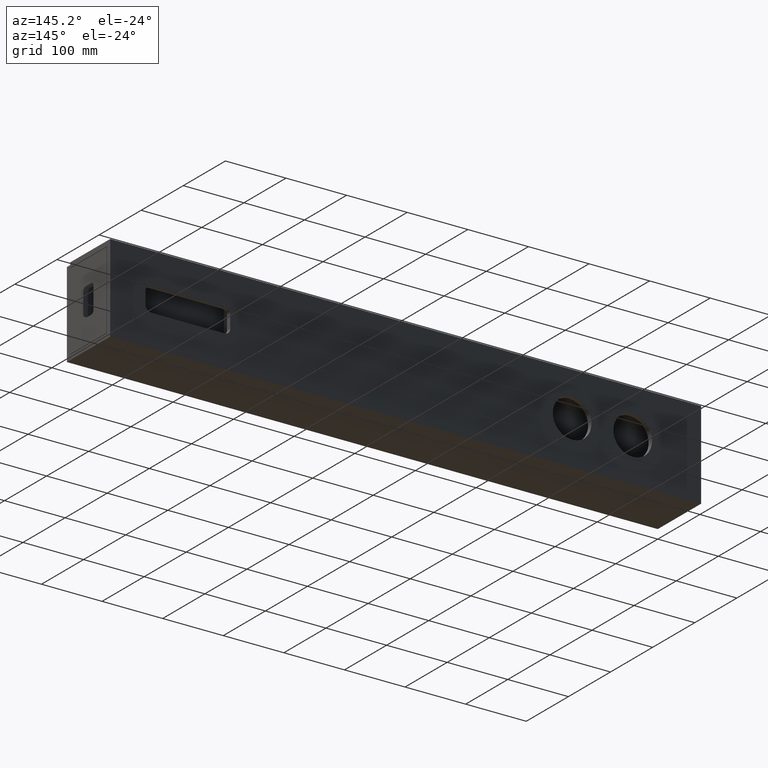
[diagram: clean part render]
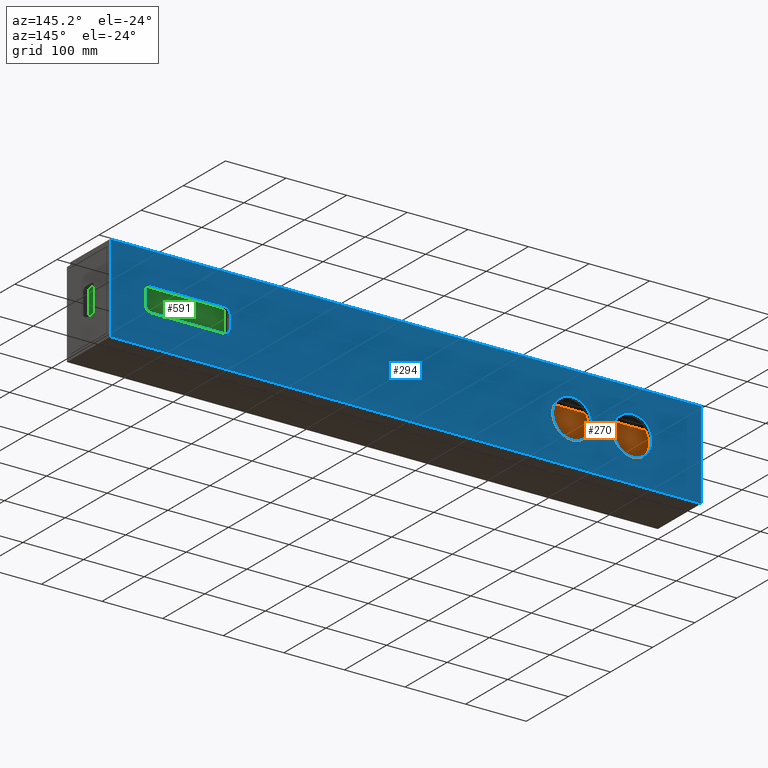
[diagram: same view with three faces highlighted in distinct colors, each labeled with its STEP entity id]
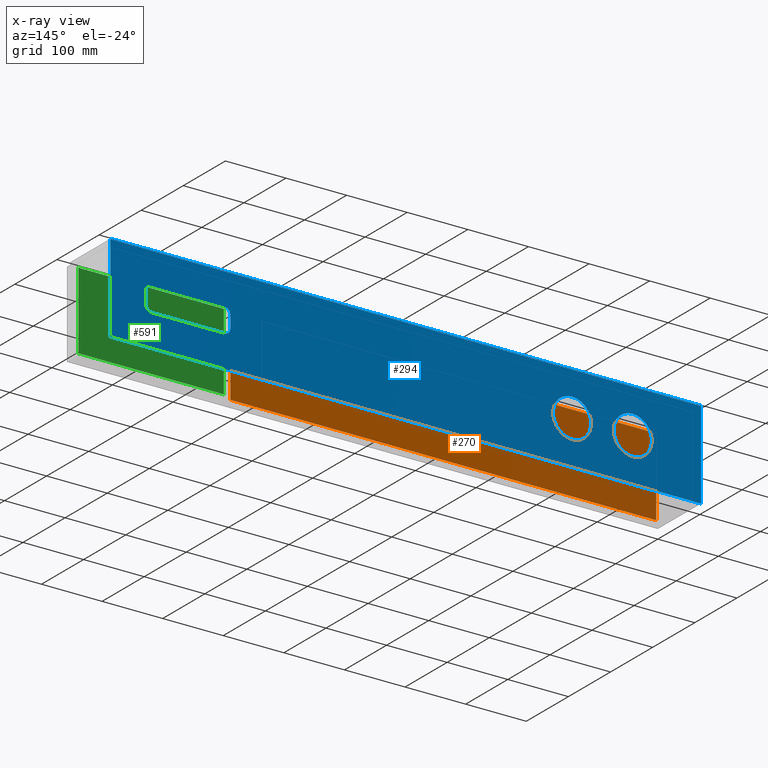
[diagram: x-ray of the same camera — body ghosted, the three highlighted faces saturated]
A machine part, auxiliary view with three faces highlighted in distinct colors.
The next image is the same camera in x-ray (body ghosted, the three faces saturated) — at least one of them is partly hidden behind the body in this view.
Their STEP definitions:

[orange] entity #270 — the highlighted planar face has unit normal (0, 1, 0).
#100 = CARTESIAN_POINT ( 'NONE',  ( 8.000000000000007105, 8.000000000000000000, 8.000000000000000000 ) ) ;
#105 = VECTOR ( 'NONE', #938, 1000.000000000000000 ) ;
#122 = AXIS2_PLACEMENT_3D ( 'NONE', #1422, #1418, #1432 ) ;
#181 = DIRECTION ( 'NONE',  ( -1.000000000000000000, -0.0000000000000000000, -0.0000000000000000000 ) ) ;
#183 = CARTESIAN_POINT ( 'NONE',  ( 975.0000000000000000, 8.000000000000000000, 136.9999999999999432 ) ) ;
#185 = LINE ( 'NONE', #183, #743 ) ;
#270 = ADVANCED_FACE ( 'NONE', ( #1428 ), #1426, .T. ) ;
#296 = EDGE_CURVE ( 'NONE', #928, #590, #1374, .T. ) ;
#338 = VECTOR ( 'NONE', #1562, 1000.000000000000000 ) ;
#499 = EDGE_CURVE ( 'NONE', #772, #1179, #185, .T. ) ;
#590 = VERTEX_POINT ( 'NONE', #100 ) ;
#743 = VECTOR ( 'NONE', #181, 1000.000000000000000 ) ;
#772 = VERTEX_POINT ( 'NONE', #1397 ) ;
#867 = EDGE_CURVE ( 'NONE', #1179, #590, #1310, .T. ) ;
#928 = VERTEX_POINT ( 'NONE', #1259 ) ;
#932 = ORIENTED_EDGE ( 'NONE', *, *, #296, .T. ) ;
#938 = DIRECTION ( 'NONE',  ( 0.0000000000000000000, -0.0000000000000000000, 1.000000000000000000 ) ) ;
#939 = CARTESIAN_POINT ( 'NONE',  ( 710.9999999999998863, 8.000000000000000000, 8.000000000000000000 ) ) ;
#943 = LINE ( 'NONE', #939, #105 ) ;
#973 = ORIENTED_EDGE ( 'NONE', *, *, #867, .F. ) ;
#1005 = ORIENTED_EDGE ( 'NONE', *, *, #499, .F. ) ;
#1023 = CARTESIAN_POINT ( 'NONE',  ( 8.000000000000007105, 8.000000000000000000, 136.9999999999999432 ) ) ;
#1050 = ORIENTED_EDGE ( 'NONE', *, *, #1294, .F. ) ;
#1163 = EDGE_LOOP ( 'NONE', ( #1050, #932, #973, #1005 ) ) ;
#1179 = VERTEX_POINT ( 'NONE', #1023 ) ;
#1190 = VECTOR ( 'NONE', #1304, 1000.000000000000000 ) ;
#1259 = CARTESIAN_POINT ( 'NONE',  ( 710.9999999999998863, 8.000000000000000000, 8.000000000000000000 ) ) ;
#1294 = EDGE_CURVE ( 'NONE', #928, #772, #943, .T. ) ;
#1304 = DIRECTION ( 'NONE',  ( -0.0000000000000000000, 0.0000000000000000000, -1.000000000000000000 ) ) ;
#1307 = CARTESIAN_POINT ( 'NONE',  ( 8.000000000000007105, 8.000000000000000000, 8.000000000000000000 ) ) ;
#1310 = LINE ( 'NONE', #1307, #1190 ) ;
#1374 = LINE ( 'NONE', #1466, #338 ) ;
#1397 = CARTESIAN_POINT ( 'NONE',  ( 710.9999999999998863, 7.999999999999906741, 136.9999999999999432 ) ) ;
#1418 = DIRECTION ( 'NONE',  ( 0.0000000000000000000, 1.000000000000000000, 0.0000000000000000000 ) ) ;
#1422 = CARTESIAN_POINT ( 'NONE',  ( 975.0000000000000000, 8.000000000000000000, 8.000000000000000000 ) ) ;
#1426 = PLANE ( 'NONE',  #122 ) ;
#1428 = FACE_OUTER_BOUND ( 'NONE', #1163, .T. ) ;
#1432 = DIRECTION ( 'NONE',  ( 0.0000000000000000000, -0.0000000000000000000, 1.000000000000000000 ) ) ;
#1466 = CARTESIAN_POINT ( 'NONE',  ( 975.0000000000000000, 8.000000000000000000, 8.000000000000000000 ) ) ;
#1562 = DIRECTION ( 'NONE',  ( -1.000000000000000000, -0.0000000000000000000, -0.0000000000000000000 ) ) ;

[blue] entity #294 — the highlighted planar face has unit normal (0, -1, -0).
#10 = CIRCLE ( 'NONE', #559, 10.00000000000000888 ) ;
#36 = AXIS2_PLACEMENT_3D ( 'NONE', #1527, #1519, #451 ) ;
#41 = DIRECTION ( 'NONE',  ( 1.000000000000000000, 0.0000000000000000000, 0.0000000000000000000 ) ) ;
#42 = CARTESIAN_POINT ( 'NONE',  ( 786.9999999999998863, 102.9999999999999858, 92.50000000000000000 ) ) ;
#43 = LINE ( 'NONE', #42, #234 ) ;
#102 = VECTOR ( 'NONE', #841, 1000.000000000000000 ) ;
#106 = CARTESIAN_POINT ( 'NONE',  ( 0.0000000000000000000, 102.9999999999999858, 144.9999999999999716 ) ) ;
#110 = CARTESIAN_POINT ( 'NONE',  ( 975.0000000000000000, 102.9999999999999858, 144.9999999999999716 ) ) ;
#111 = CARTESIAN_POINT ( 'NONE',  ( 906.9999999999998863, 103.0000000000000000, 52.49999999999998579 ) ) ;
#159 = VECTOR ( 'NONE', #810, 1000.000000000000000 ) ;
#164 = VECTOR ( 'NONE', #1392, 1000.000000000000000 ) ;
#206 = DIRECTION ( 'NONE',  ( 0.0000000000000000000, 0.0000000000000000000, 1.000000000000000000 ) ) ;
#207 = DIRECTION ( 'NONE',  ( 0.0000000000000000000, 1.000000000000000000, 9.570888143320319339E-17 ) ) ;
#208 = CARTESIAN_POINT ( 'NONE',  ( 906.9999999999998863, 102.9999999999999858, 82.50000000000000000 ) ) ;
#234 = VECTOR ( 'NONE', #41, 1000.000000000000000 ) ;
#256 = AXIS2_PLACEMENT_3D ( 'NONE', #859, #858, #856 ) ;
#276 = EDGE_CURVE ( 'NONE', #955, #567, #1449, .T. ) ;
#294 = ADVANCED_FACE ( 'NONE', ( #961, #1020, #1155, #1106 ), #459, .F. ) ;
#331 = VECTOR ( 'NONE', #817, 1000.000000000000000 ) ;
#347 = EDGE_CURVE ( 'NONE', #1308, #964, #546, .T. ) ;
#349 = DIRECTION ( 'NONE',  ( 0.0000000000000000000, 0.0000000000000000000, 1.000000000000000000 ) ) ;
#351 = DIRECTION ( 'NONE',  ( 0.0000000000000000000, 1.000000000000000000, 9.570888143320319339E-17 ) ) ;
#353 = CARTESIAN_POINT ( 'NONE',  ( 786.9999999999998863, 103.0000000000000000, 62.49999999999997868 ) ) ;
#362 = EDGE_CURVE ( 'NONE', #1297, #1053, #422, .T. ) ;
#385 = EDGE_CURVE ( 'NONE', #1065, #1297, #462, .T. ) ;
#393 = CIRCLE ( 'NONE', #651, 32.00000000000000000 ) ;
#413 = CIRCLE ( 'NONE', #1284, 9.999999999999994671 ) ;
#420 = DIRECTION ( 'NONE',  ( 0.0000000000000000000, -6.938893903907219503E-16, 1.000000000000000000 ) ) ;
#421 = CARTESIAN_POINT ( 'NONE',  ( 776.9999999999998863, 103.0000000000000000, 62.49999999999997868 ) ) ;
#422 = LINE ( 'NONE', #421, #617 ) ;
#450 = DIRECTION ( 'NONE',  ( 0.0000000000000000000, -1.000000000000000000, -9.570888143320319339E-17 ) ) ;
#451 = DIRECTION ( 'NONE',  ( 0.0000000000000000000, 0.0000000000000000000, 1.000000000000000000 ) ) ;
#459 = PLANE ( 'NONE',  #1191 ) ;
#462 = CIRCLE ( 'NONE', #1104, 10.00000000000000178 ) ;
#475 = ORIENTED_EDGE ( 'NONE', *, *, #1570, .F. ) ;
#480 = EDGE_CURVE ( 'NONE', #884, #785, #1447, .T. ) ;
#481 = CARTESIAN_POINT ( 'NONE',  ( 975.0000000000000000, 103.0000000000000000, 0.0000000000000000000 ) ) ;
#512 = AXIS2_PLACEMENT_3D ( 'NONE', #208, #207, #206 ) ;
#530 = CIRCLE ( 'NONE', #1185, 32.00000000000000000 ) ;
#546 = CIRCLE ( 'NONE', #36, 32.00000000000000000 ) ;
#552 = VERTEX_POINT ( 'NONE', #111 ) ;
#559 = AXIS2_PLACEMENT_3D ( 'NONE', #799, #794, #791 ) ;
#560 = ORIENTED_EDGE ( 'NONE', *, *, #276, .F. ) ;
#566 = VERTEX_POINT ( 'NONE', #1171 ) ;
#567 = VERTEX_POINT ( 'NONE', #110 ) ;
#578 = VERTEX_POINT ( 'NONE', #106 ) ;
#596 = DIRECTION ( 'NONE',  ( 0.0000000000000000000, 9.570888143320319339E-17, -1.000000000000000000 ) ) ;
#617 = VECTOR ( 'NONE', #420, 1000.000000000000000 ) ;
#618 = EDGE_CURVE ( 'NONE', #1288, #884, #43, .T. ) ;
#627 = ORIENTED_EDGE ( 'NONE', *, *, #1537, .F. ) ;
#651 = AXIS2_PLACEMENT_3D ( 'NONE', #1368, #1365, #1363 ) ;
#676 = EDGE_CURVE ( 'NONE', #552, #1065, #1549, .T. ) ;
#685 = ORIENTED_EDGE ( 'NONE', *, *, #618, .F. ) ;
#742 = EDGE_CURVE ( 'NONE', #1053, #1288, #413, .T. ) ;
#785 = VERTEX_POINT ( 'NONE', #1394 ) ;
#791 = DIRECTION ( 'NONE',  ( 0.0000000000000000000, 0.0000000000000000000, -1.000000000000000000 ) ) ;
#794 = DIRECTION ( 'NONE',  ( 0.0000000000000000000, 1.000000000000000000, 9.570888143320319339E-17 ) ) ;
#799 = CARTESIAN_POINT ( 'NONE',  ( 906.9999999999998863, 103.0000000000000000, 62.49999999999998579 ) ) ;
#804 = EDGE_CURVE ( 'NONE', #964, #1308, #393, .T. ) ;
#810 = DIRECTION ( 'NONE',  ( -1.000000000000000000, -0.0000000000000000000, -0.0000000000000000000 ) ) ;
#814 = CARTESIAN_POINT ( 'NONE',  ( 975.0000000000000000, 102.9999999999999858, 144.9999999999999716 ) ) ;
#816 = LINE ( 'NONE', #814, #159 ) ;
#817 = DIRECTION ( 'NONE',  ( -1.000000000000000000, -0.0000000000000000000, -0.0000000000000000000 ) ) ;
#820 = CARTESIAN_POINT ( 'NONE',  ( 975.0000000000000000, 103.0000000000000000, 0.0000000000000000000 ) ) ;
#824 = LINE ( 'NONE', #820, #331 ) ;
#826 = DIRECTION ( 'NONE',  ( 0.0000000000000000000, 0.0000000000000000000, 1.000000000000000000 ) ) ;
#832 = DIRECTION ( 'NONE',  ( 0.0000000000000000000, 1.000000000000000000, 9.570888143320319339E-17 ) ) ;
#835 = CARTESIAN_POINT ( 'NONE',  ( 213.0000000000000284, 102.9999999999999858, 72.49999999999998579 ) ) ;
#841 = DIRECTION ( 'NONE',  ( -0.0000000000000000000, 6.938893903907219503E-16, -1.000000000000000000 ) ) ;
#844 = CARTESIAN_POINT ( 'NONE',  ( 916.9999999999998863, 103.0000000000000000, 62.49999999999997868 ) ) ;
#845 = LINE ( 'NONE', #844, #102 ) ;
#856 = DIRECTION ( 'NONE',  ( 0.0000000000000000000, 0.0000000000000000000, 1.000000000000000000 ) ) ;
#858 = DIRECTION ( 'NONE',  ( 0.0000000000000000000, 1.000000000000000000, 9.570888143320319339E-17 ) ) ;
#859 = CARTESIAN_POINT ( 'NONE',  ( 213.0000000000000284, 102.9999999999999858, 72.49999999999998579 ) ) ;
#860 = VECTOR ( 'NONE', #1547, 1000.000000000000000 ) ;
#868 = VERTEX_POINT ( 'NONE', #1303 ) ;
#884 = VERTEX_POINT ( 'NONE', #1286 ) ;
#889 = EDGE_LOOP ( 'NONE', ( #1550, #475, #979, #1082, #685, #1195, #1139, #909 ) ) ;
#909 = ORIENTED_EDGE ( 'NONE', *, *, #385, .F. ) ;
#924 = CARTESIAN_POINT ( 'NONE',  ( 113.0000000000000142, 102.9999999999999858, 104.4999999999999858 ) ) ;
#925 = CARTESIAN_POINT ( 'NONE',  ( 776.9999999999998863, 103.0000000000000000, 62.49999999999997868 ) ) ;
#947 = CARTESIAN_POINT ( 'NONE',  ( 786.9999999999998863, 102.9999999999999858, 92.50000000000000000 ) ) ;
#955 = VERTEX_POINT ( 'NONE', #1244 ) ;
#961 = FACE_BOUND ( 'NONE', #1266, .T. ) ;
#964 = VERTEX_POINT ( 'NONE', #1241 ) ;
#970 = DIRECTION ( 'NONE',  ( 0.0000000000000000000, -9.570888143320318106E-17, 1.000000000000000000 ) ) ;
#975 = CARTESIAN_POINT ( 'NONE',  ( 0.0000000000000000000, 103.0000000000000000, 0.0000000000000000000 ) ) ;
#977 = LINE ( 'NONE', #975, #1558 ) ;
#979 = ORIENTED_EDGE ( 'NONE', *, *, #1472, .F. ) ;
#1011 = VERTEX_POINT ( 'NONE', #1225 ) ;
#1020 = FACE_BOUND ( 'NONE', #1208, .T. ) ;
#1035 = VERTEX_POINT ( 'NONE', #1209 ) ;
#1053 = VERTEX_POINT ( 'NONE', #1164 ) ;
#1065 = VERTEX_POINT ( 'NONE', #1111 ) ;
#1082 = ORIENTED_EDGE ( 'NONE', *, *, #480, .F. ) ;
#1094 = EDGE_LOOP ( 'NONE', ( #1187, #1296, #627, #560 ) ) ;
#1099 = CIRCLE ( 'NONE', #256, 32.00000000000000000 ) ;
#1104 = AXIS2_PLACEMENT_3D ( 'NONE', #353, #351, #349 ) ;
#1106 = FACE_OUTER_BOUND ( 'NONE', #1094, .T. ) ;
#1111 = CARTESIAN_POINT ( 'NONE',  ( 786.9999999999998863, 103.0000000000000000, 52.49999999999998579 ) ) ;
#1139 = ORIENTED_EDGE ( 'NONE', *, *, #362, .F. ) ;
#1155 = FACE_BOUND ( 'NONE', #889, .T. ) ;
#1164 = CARTESIAN_POINT ( 'NONE',  ( 776.9999999999998863, 102.9999999999999858, 82.50000000000000000 ) ) ;
#1171 = CARTESIAN_POINT ( 'NONE',  ( 213.0000000000000284, 102.9999999999999858, 40.49999999999998579 ) ) ;
#1185 = AXIS2_PLACEMENT_3D ( 'NONE', #835, #832, #826 ) ;
#1187 = ORIENTED_EDGE ( 'NONE', *, *, #1494, .T. ) ;
#1191 = AXIS2_PLACEMENT_3D ( 'NONE', #481, #450, #596 ) ;
#1195 = ORIENTED_EDGE ( 'NONE', *, *, #742, .F. ) ;
#1208 = EDGE_LOOP ( 'NONE', ( #1425, #1407 ) ) ;
#1209 = CARTESIAN_POINT ( 'NONE',  ( 0.0000000000000000000, 103.0000000000000000, 0.0000000000000000000 ) ) ;
#1225 = CARTESIAN_POINT ( 'NONE',  ( 213.0000000000000284, 102.9999999999999858, 104.4999999999999858 ) ) ;
#1226 = EDGE_CURVE ( 'NONE', #1035, #578, #977, .T. ) ;
#1241 = CARTESIAN_POINT ( 'NONE',  ( 113.0000000000000142, 102.9999999999999858, 40.49999999999998579 ) ) ;
#1244 = CARTESIAN_POINT ( 'NONE',  ( 975.0000000000000000, 103.0000000000000000, 0.0000000000000000000 ) ) ;
#1266 = EDGE_LOOP ( 'NONE', ( #1421, #1431 ) ) ;
#1284 = AXIS2_PLACEMENT_3D ( 'NONE', #1413, #1410, #1409 ) ;
#1286 = CARTESIAN_POINT ( 'NONE',  ( 906.9999999999998863, 102.9999999999999858, 92.50000000000000000 ) ) ;
#1288 = VERTEX_POINT ( 'NONE', #947 ) ;
#1296 = ORIENTED_EDGE ( 'NONE', *, *, #1226, .T. ) ;
#1297 = VERTEX_POINT ( 'NONE', #925 ) ;
#1303 = CARTESIAN_POINT ( 'NONE',  ( 916.9999999999998863, 103.0000000000000000, 62.49999999999997868 ) ) ;
#1308 = VERTEX_POINT ( 'NONE', #924 ) ;
#1363 = DIRECTION ( 'NONE',  ( 0.0000000000000000000, 0.0000000000000000000, 1.000000000000000000 ) ) ;
#1365 = DIRECTION ( 'NONE',  ( 0.0000000000000000000, 1.000000000000000000, 9.570888143320319339E-17 ) ) ;
#1368 = CARTESIAN_POINT ( 'NONE',  ( 113.0000000000000142, 102.9999999999999858, 72.49999999999998579 ) ) ;
#1392 = DIRECTION ( 'NONE',  ( 0.0000000000000000000, -9.570888143320318106E-17, 1.000000000000000000 ) ) ;
#1394 = CARTESIAN_POINT ( 'NONE',  ( 916.9999999999998863, 102.9999999999999858, 82.50000000000000000 ) ) ;
#1407 = ORIENTED_EDGE ( 'NONE', *, *, #1481, .F. ) ;
#1409 = DIRECTION ( 'NONE',  ( 0.0000000000000000000, 0.0000000000000000000, 1.000000000000000000 ) ) ;
#1410 = DIRECTION ( 'NONE',  ( 0.0000000000000000000, 1.000000000000000000, 9.570888143320319339E-17 ) ) ;
#1413 = CARTESIAN_POINT ( 'NONE',  ( 786.9999999999998863, 102.9999999999999858, 82.50000000000000000 ) ) ;
#1421 = ORIENTED_EDGE ( 'NONE', *, *, #347, .F. ) ;
#1425 = ORIENTED_EDGE ( 'NONE', *, *, #1451, .F. ) ;
#1431 = ORIENTED_EDGE ( 'NONE', *, *, #804, .F. ) ;
#1447 = CIRCLE ( 'NONE', #512, 9.999999999999994671 ) ;
#1449 = LINE ( 'NONE', #1452, #164 ) ;
#1451 = EDGE_CURVE ( 'NONE', #1011, #566, #1099, .T. ) ;
#1452 = CARTESIAN_POINT ( 'NONE',  ( 975.0000000000000000, 103.0000000000000000, 0.0000000000000000000 ) ) ;
#1472 = EDGE_CURVE ( 'NONE', #785, #868, #845, .T. ) ;
#1481 = EDGE_CURVE ( 'NONE', #566, #1011, #530, .T. ) ;
#1494 = EDGE_CURVE ( 'NONE', #955, #1035, #824, .T. ) ;
#1519 = DIRECTION ( 'NONE',  ( 0.0000000000000000000, 1.000000000000000000, 9.570888143320319339E-17 ) ) ;
#1527 = CARTESIAN_POINT ( 'NONE',  ( 113.0000000000000142, 102.9999999999999858, 72.49999999999998579 ) ) ;
#1537 = EDGE_CURVE ( 'NONE', #567, #578, #816, .T. ) ;
#1547 = DIRECTION ( 'NONE',  ( -1.000000000000000000, -0.0000000000000000000, -0.0000000000000000000 ) ) ;
#1548 = CARTESIAN_POINT ( 'NONE',  ( 786.9999999999998863, 103.0000000000000000, 52.49999999999998579 ) ) ;
#1549 = LINE ( 'NONE', #1548, #860 ) ;
#1550 = ORIENTED_EDGE ( 'NONE', *, *, #676, .F. ) ;
#1558 = VECTOR ( 'NONE', #970, 1000.000000000000000 ) ;
#1570 = EDGE_CURVE ( 'NONE', #868, #552, #10, .T. ) ;

[green] entity #591 — the highlighted planar face has unit normal (0, -1, 0).
#20 = CARTESIAN_POINT ( 'NONE',  ( 726.9999999999998863, 15.99999999999994849, 9.000000000000001776 ) ) ;
#89 = VERTEX_POINT ( 'NONE', #1359 ) ;
#95 = DIRECTION ( 'NONE',  ( 1.000000000000000000, 1.445602896647338670E-16, 0.0000000000000000000 ) ) ;
#96 = DIRECTION ( 'NONE',  ( 1.445602896647338670E-16, -1.000000000000000000, 0.0000000000000000000 ) ) ;
#97 = CARTESIAN_POINT ( 'NONE',  ( 967.0000000000000000, 15.99999999999998224, 407.0592527576125690 ) ) ;
#98 = PLANE ( 'NONE',  #682 ) ;
#99 = FACE_OUTER_BOUND ( 'NONE', #1130, .T. ) ;
#360 = DIRECTION ( 'NONE',  ( 1.000000000000000000, 1.445602896647338670E-16, 0.0000000000000000000 ) ) ;
#363 = CARTESIAN_POINT ( 'NONE',  ( 967.0000000000000000, 15.99999999999998224, 135.9999999999999432 ) ) ;
#367 = LINE ( 'NONE', #363, #595 ) ;
#380 = EDGE_CURVE ( 'NONE', #89, #1278, #367, .T. ) ;
#591 = ADVANCED_FACE ( 'NONE', ( #99 ), #98, .F. ) ;
#595 = VECTOR ( 'NONE', #360, 1000.000000000000000 ) ;
#639 = VERTEX_POINT ( 'NONE', #20 ) ;
#663 = VECTOR ( 'NONE', #1566, 1000.000000000000000 ) ;
#668 = EDGE_CURVE ( 'NONE', #89, #639, #1569, .T. ) ;
#682 = AXIS2_PLACEMENT_3D ( 'NONE', #97, #96, #95 ) ;
#793 = ORIENTED_EDGE ( 'NONE', *, *, #1295, .T. ) ;
#798 = ORIENTED_EDGE ( 'NONE', *, *, #668, .F. ) ;
#805 = ORIENTED_EDGE ( 'NONE', *, *, #380, .T. ) ;
#821 = VECTOR ( 'NONE', #848, 1000.000000000000000 ) ;
#837 = ORIENTED_EDGE ( 'NONE', *, *, #1461, .T. ) ;
#848 = DIRECTION ( 'NONE',  ( -1.000000000000000000, -1.445602896647338670E-16, 0.0000000000000000000 ) ) ;
#852 = CARTESIAN_POINT ( 'NONE',  ( 967.0000000000000000, 15.99999999999998224, 9.000000000000001776 ) ) ;
#855 = LINE ( 'NONE', #852, #821 ) ;
#929 = DIRECTION ( 'NONE',  ( -0.0000000000000000000, -0.0000000000000000000, -1.000000000000000000 ) ) ;
#934 = CARTESIAN_POINT ( 'NONE',  ( 967.0000000000000000, 15.99999999999998224, 407.0592527576125690 ) ) ;
#936 = LINE ( 'NONE', #934, #1072 ) ;
#950 = CARTESIAN_POINT ( 'NONE',  ( 967.0000000000000000, 15.99999999999998224, 135.9999999999999432 ) ) ;
#1064 = CARTESIAN_POINT ( 'NONE',  ( 967.0000000000000000, 15.99999999999998224, 9.000000000000001776 ) ) ;
#1072 = VECTOR ( 'NONE', #929, 1000.000000000000000 ) ;
#1121 = VERTEX_POINT ( 'NONE', #1064 ) ;
#1130 = EDGE_LOOP ( 'NONE', ( #798, #805, #793, #837 ) ) ;
#1278 = VERTEX_POINT ( 'NONE', #950 ) ;
#1295 = EDGE_CURVE ( 'NONE', #1278, #1121, #936, .T. ) ;
#1359 = CARTESIAN_POINT ( 'NONE',  ( 726.9999999999998863, 15.99999999999994849, 135.9999999999999432 ) ) ;
#1461 = EDGE_CURVE ( 'NONE', #1121, #639, #855, .T. ) ;
#1566 = DIRECTION ( 'NONE',  ( -0.0000000000000000000, -0.0000000000000000000, -1.000000000000000000 ) ) ;
#1568 = CARTESIAN_POINT ( 'NONE',  ( 726.9999999999998863, 15.99999999999994849, 407.0592527576125690 ) ) ;
#1569 = LINE ( 'NONE', #1568, #663 ) ;